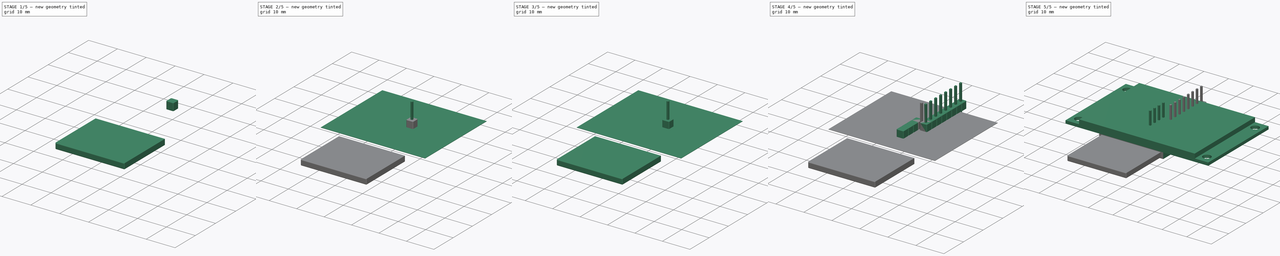
[diagram: build sequence overview — one tinted view per stage of 5, left to right]
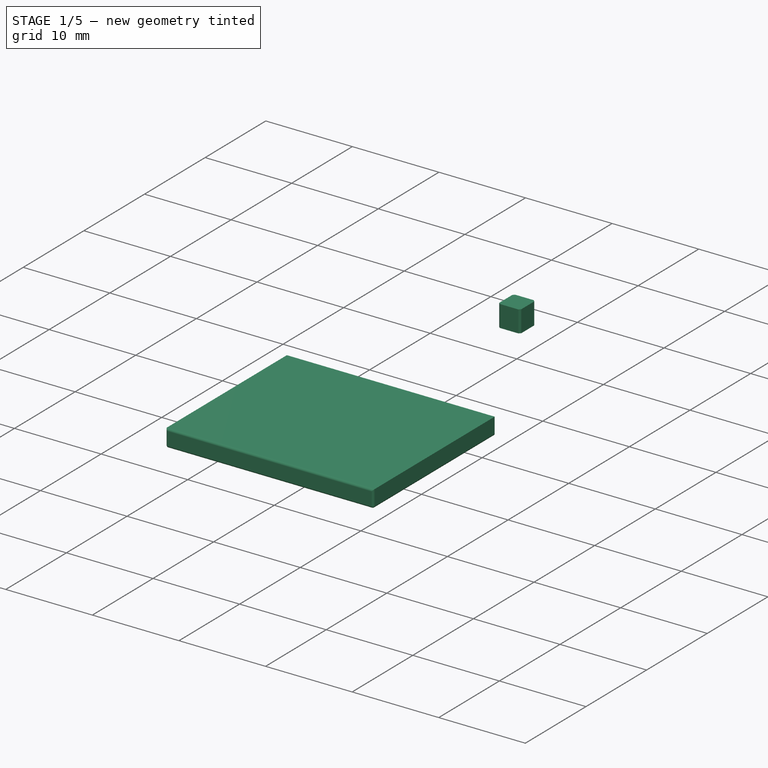
[diagram: stage 1 of 5 — iso view after this stage's code; geometry added in this stage tinted green]
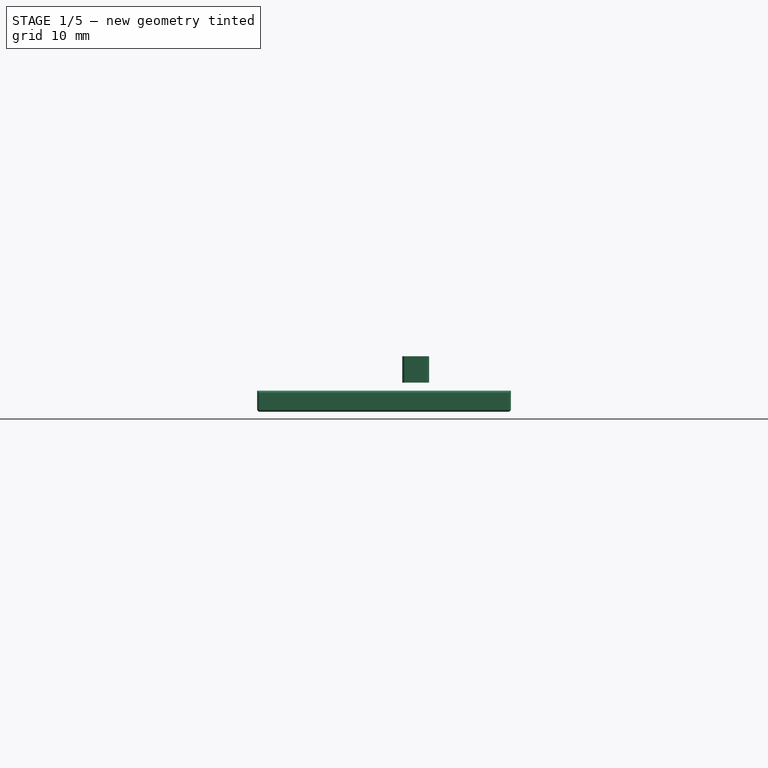
[diagram: stage 1 of 5 — front view after this stage's code; geometry added in this stage tinted green]
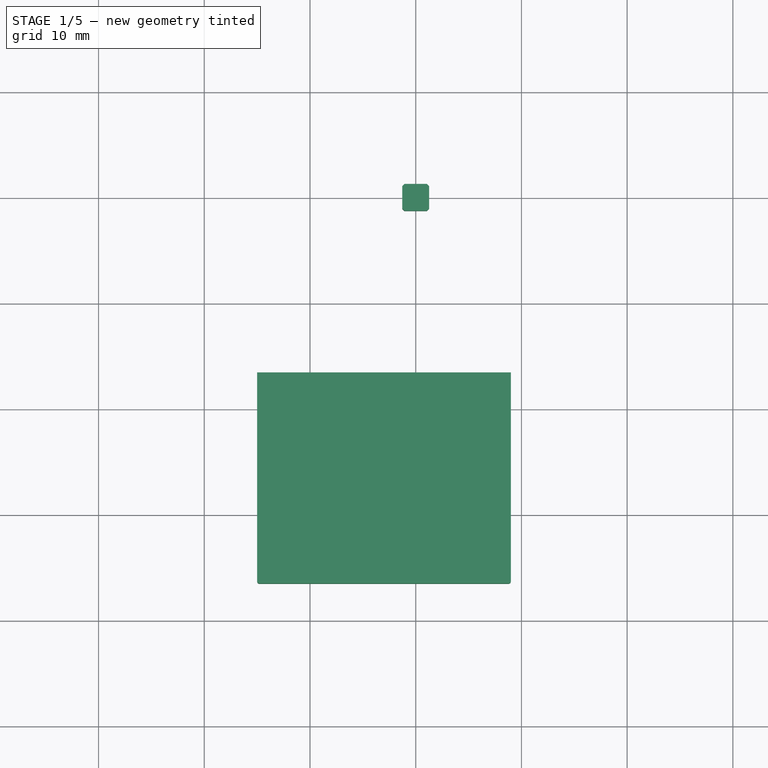
[diagram: stage 1 of 5 — top view after this stage's code; geometry added in this stage tinted green]
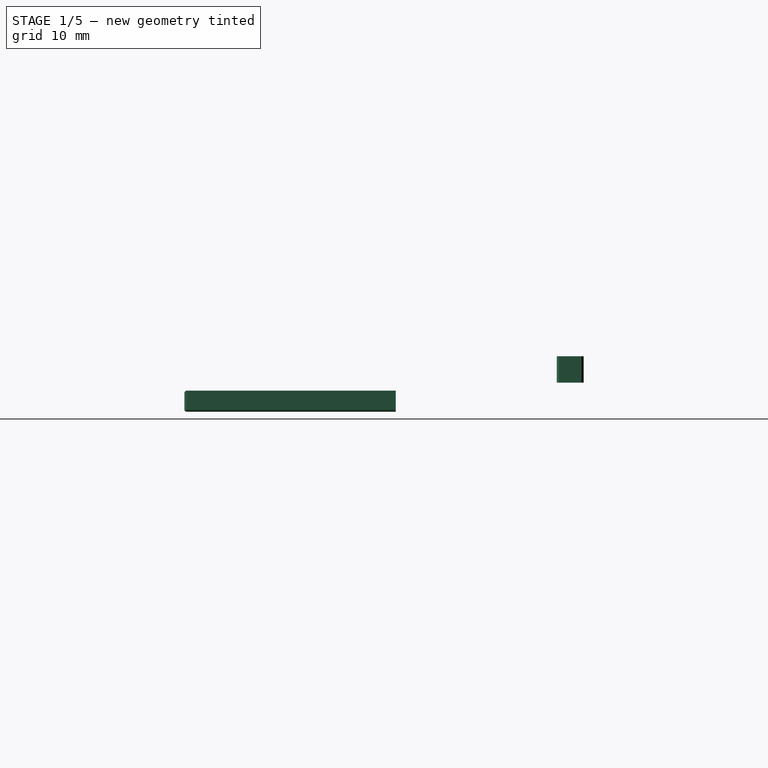
[diagram: stage 1 of 5 — right view after this stage's code; geometry added in this stage tinted green]
FCSTD DOCUMENT  (FreeCAD 0.18R4 (GitTag))
Label: 1_8_inch_tft_screen_with_sd_card
License: CreativeCommons Attribution-NonCommercial
LicenseURL: http://creativecommons.org/licenses/by-nc/4.0/
objects: Sketcher::SketchObject×9, PartDesign::Pad×9, PartDesign::Body×9, PartDesign::Chamfer×6, Part::FeaturePython×4, App::Part×3, PartDesign::ShapeBinder×2, PartDesign::Fillet×1
note: 49 computed .brp shape members not serialized (recipe doc carries the construction recipe); baked Part::Feature solids carry a one-line shape summary decoded from their .brp

FEATURE [PartDesign::Pad] Pad063
  Length = 2.5
  Length2 = 100
  Profile = -> Sketch208
  Type = 0
FEATURE [PartDesign::Chamfer] Chamfer014
  Base = -> Pad063 [Edge2,Edge1,Edge5,Edge8]
  BaseFeature = -> Pad063
  Size = 0.2
FEATURE [App::Part] Part010  label="Pin Header"
  Group = -> [Body035,Body034,Array,Array001]
  Origin = -> Origin051
  Placement = pos=(25,8.9,-1.1e-15) rot=(1,0,0;3.14159rad)
FEATURE [PartDesign::ShapeBinder] CopyPad066
  TraceSupport = false
FEATURE [Sketcher::SketchObject] Sketch
  MapMode = 5
  Placement = pos=(0,-16.5,0) rot=(1,0,0;1.5708rad)
  Support = -> [CopyPad066]
  sketch-geometry (4):
    g0: LineSegment StartX=-15 StartY=-2.75 StartZ=0 EndX=9 EndY=-2.75 EndZ=0
    g1: LineSegment StartX=9 StartY=-2.75 StartZ=0 EndX=9 EndY=-0.75 EndZ=0
    g2: LineSegment StartX=9 StartY=-0.75 StartZ=0 EndX=-15 EndY=-0.75 EndZ=0
    g3: LineSegment StartX=-15 StartY=-0.75 StartZ=0 EndX=-15 EndY=-2.75 EndZ=0
  constraints (12):
    c: Coincident(g0,g1)
    c: Coincident(g1,g2)
    c: Coincident(g2,g3)
    c: Coincident(g3,g0)
    c: Horizontal(g0)
    c: Horizontal(g2)
    c: Vertical(g1)
    c: Vertical(g3)
    c: DistanceX(g2,g2) = 24
    c: DistanceY(g3,g3) = 2
    c: DistanceX(g-1,g1) = 9
    c: DistanceY(g1,g-1) = 0.75
FEATURE [PartDesign::Pad] Pad
  Length = 20
  Length2 = 100
  Profile = -> Sketch
  Type = 0
FEATURE [PartDesign::Fillet] Fillet
  Base = -> Pad [Face6,Edge1,Edge2]
  BaseFeature = -> Pad
  Radius = 0.24
FEATURE [PartDesign::Body] Body  label="SD-CARD"
  Group = -> [CopyPad066,Sketch,Pad,Fillet]
  Origin = -> Origin
  Tip = -> Fillet
FEATURE [App::Part] Part  label="1,8" TFT"
  Group = -> [Body001,Body002,Body003,Part010,Part011,Body038,Body]
  Origin = -> Origin001
  Placement = pos=(41.5,40,5.5) rot=(0,0,1;0rad)
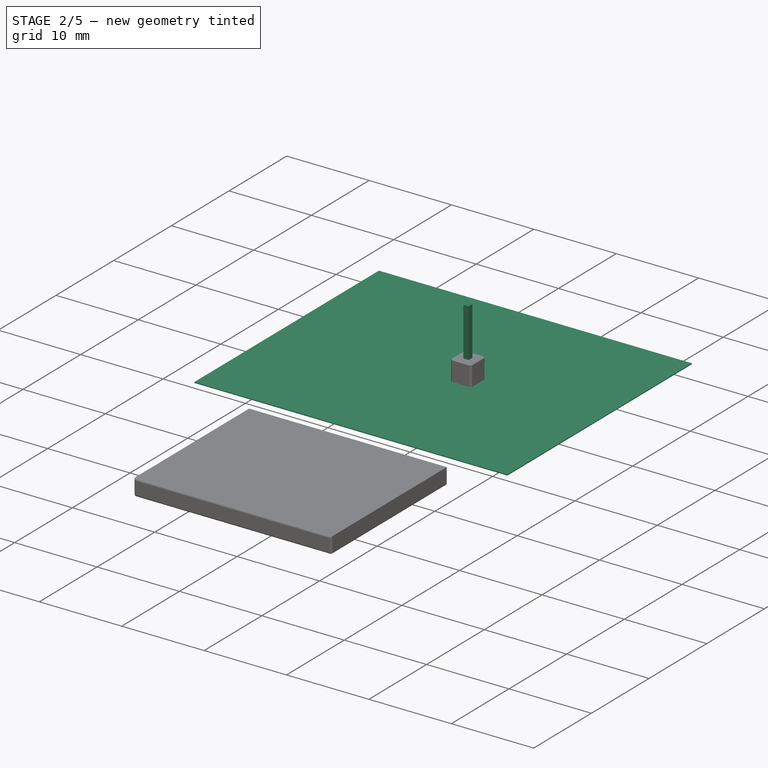
[diagram: stage 2 of 5 — iso view after this stage's code; geometry added in this stage tinted green]
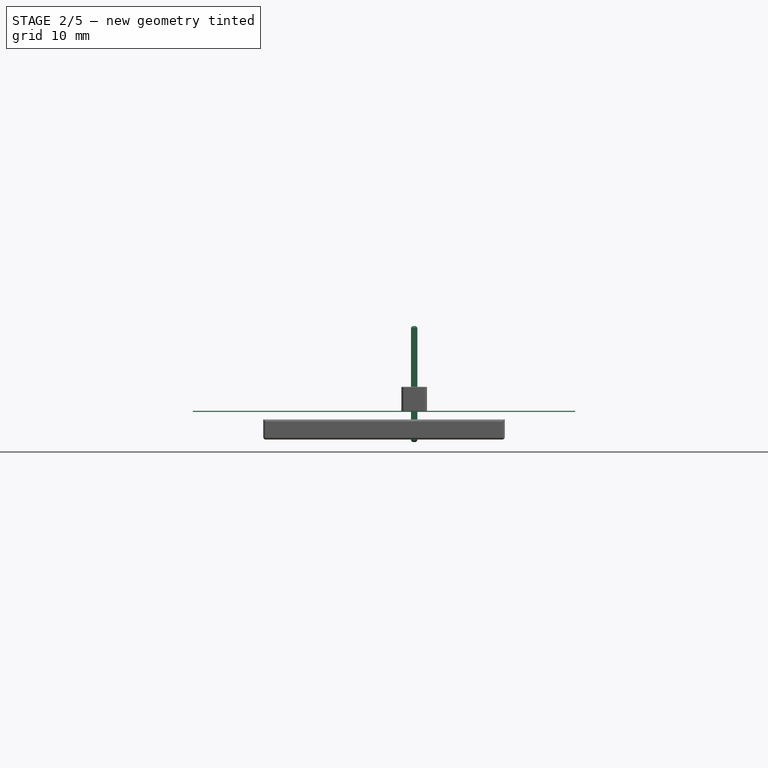
[diagram: stage 2 of 5 — front view after this stage's code; geometry added in this stage tinted green]
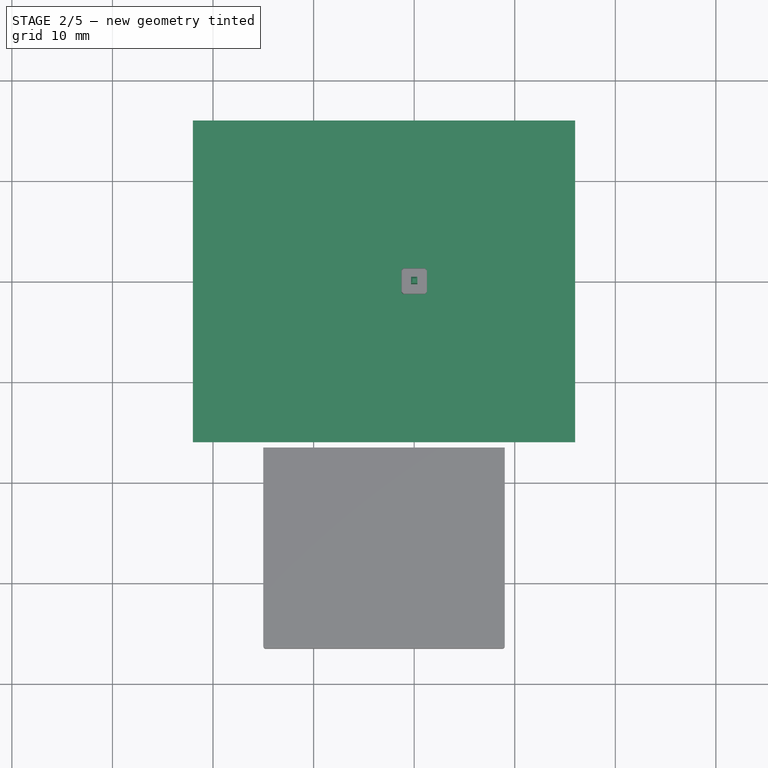
[diagram: stage 2 of 5 — top view after this stage's code; geometry added in this stage tinted green]
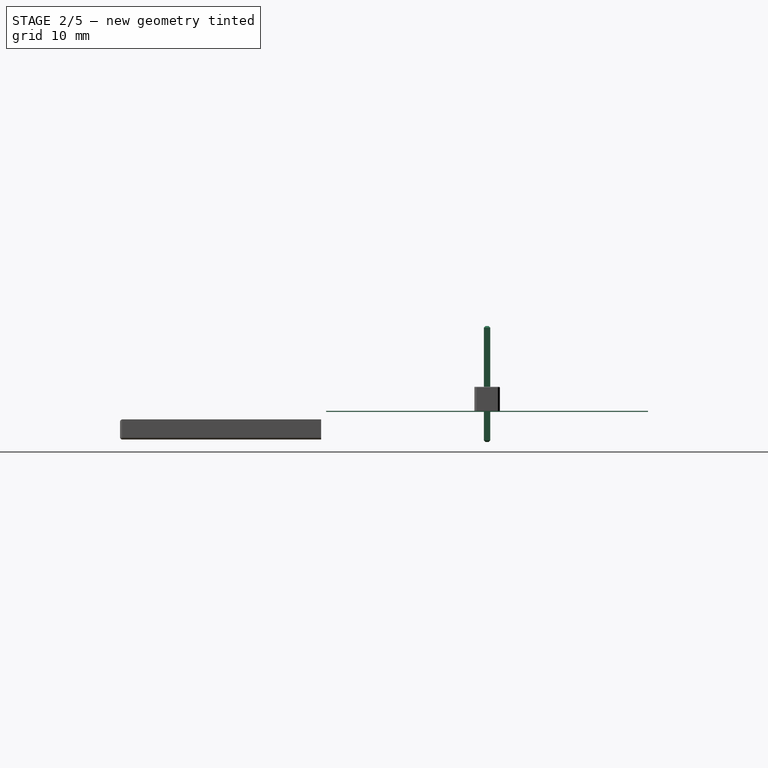
[diagram: stage 2 of 5 — right view after this stage's code; geometry added in this stage tinted green]
FEATURE [Sketcher::SketchObject] Sketch016
  MapMode = 5
  Support = -> [XY_Plane002]
  sketch-geometry (4):
    g0: LineSegment StartX=-23.5 StartY=17.5 StartZ=0 EndX=23.5 EndY=17.5 EndZ=0
    g1: LineSegment StartX=23.5 StartY=17.5 StartZ=0 EndX=23.5 EndY=-17.5 EndZ=0
    g2: LineSegment StartX=23.5 StartY=-17.5 StartZ=0 EndX=-23.5 EndY=-17.5 EndZ=0
    g3: LineSegment StartX=-23.5 StartY=-17.5 StartZ=0 EndX=-23.5 EndY=17.5 EndZ=0
  constraints (10):
    c: Coincident(g0,g1)
    c: Coincident(g1,g2)
    c: Coincident(g2,g3)
    c: Coincident(g3,g0)
    c: Horizontal(g2)
    c: Vertical(g1)
    c: Symmetric(g0,g2,g-1)
    c: DistanceX(g0,g0) = 47
    c: DistanceY(g3,g3) = 35
    c: Symmetric(g0,g0,g-2)
FEATURE [Sketcher::SketchObject] Sketch208
  MapMode = 5
  Support = -> [XY_Plane052]
  sketch-geometry (4):
    g0: LineSegment StartX=-1.27 StartY=-1.27 StartZ=0 EndX=1.27 EndY=-1.27 EndZ=0
    g1: LineSegment StartX=1.27 StartY=-1.27 StartZ=0 EndX=1.27 EndY=1.27 EndZ=0
    g2: LineSegment StartX=1.27 StartY=1.27 StartZ=0 EndX=-1.27 EndY=1.27 EndZ=0
    g3: LineSegment StartX=-1.27 StartY=1.27 StartZ=0 EndX=-1.27 EndY=-1.27 EndZ=0
  constraints (10):
    c: Coincident(g0,g1)
    c: Coincident(g1,g2)
    c: Coincident(g2,g3)
    c: Coincident(g3,g0)
    c: Horizontal(g0)
    c: Vertical(g3)
    c: Symmetric(g1,g2,g-2)
    c: Symmetric(g0,g1,g-1)
    c: Equal(g3,g2)
    c: DistanceX(g2,g2) = 2.54
FEATURE [Sketcher::SketchObject] Sketch207
  MapMode = 5
  Placement = pos=(0,0,0) rot=(1,0,0;1.5708rad)
  Support = -> [XZ_Plane050]
  sketch-geometry (4):
    g0: LineSegment StartX=-0.32 StartY=-3 StartZ=0 EndX=0.32 EndY=-3 EndZ=0
    g1: LineSegment StartX=0.32 StartY=-3 StartZ=0 EndX=0.32 EndY=8.54 EndZ=0
    g2: LineSegment StartX=0.32 StartY=8.54 StartZ=0 EndX=-0.32 EndY=8.54 EndZ=0
    g3: LineSegment StartX=-0.32 StartY=8.54 StartZ=0 EndX=-0.32 EndY=-3 EndZ=0
  constraints (11):
    c: Coincident(g0,g1)
    c: Coincident(g1,g2)
    c: Coincident(g2,g3)
    c: Coincident(g3,g0)
    c: Horizontal(g0)
    c: Vertical(g1)
    c: Vertical(g3)
    c: DistanceY(g-1,g1) = 8.54
    c: DistanceY(g0,g-1) = 3
    c: Symmetric(g2,g1,g-2)
    c: DistanceX(g2,g2) = 0.64
FEATURE [Sketcher::SketchObject] Sketch017
  MapMode = 5
  Support = -> [XY_Plane003]
  sketch-geometry (4):
    g0: LineSegment StartX=-22 StartY=-16 StartZ=0 EndX=16 EndY=-16 EndZ=0
    g1: LineSegment StartX=16 StartY=-16 StartZ=0 EndX=16 EndY=16 EndZ=0
    g2: LineSegment StartX=16 StartY=16 StartZ=0 EndX=-22 EndY=16 EndZ=0
    g3: LineSegment StartX=-22 StartY=16 StartZ=0 EndX=-22 EndY=-16 EndZ=0
  constraints (11):
    c: Coincident(g0,g1)
    c: Coincident(g1,g2)
    c: Coincident(g2,g3)
    c: Coincident(g3,g0)
    c: Horizontal(g0)
    c: Horizontal(g2)
    c: Vertical(g3)
    c: DistanceX(g2,g2) = 38
    c: DistanceY(g1,g1) = 32
    c: Symmetric(g1,g0,g-1)
    c: DistanceX(g0,g-1) = 22
FEATURE [PartDesign::Pad] Pad002
  Length = 0.1
  Length2 = 100
  Profile = -> Sketch017
  Type = 0
FEATURE [PartDesign::Pad] Pad062
  Length = 0.32
  Length2 = 0.32
  Placement = pos=(0,0,0) rot=(1,0,0;1.5708rad)
  Profile = -> Sketch207
  Type = 4
FEATURE [PartDesign::Chamfer] Chamfer012
  Base = -> Pad062 [Face3,Face1]
  BaseFeature = -> Pad062
  Placement = pos=(0,0,0) rot=(1,0,0;1.5708rad)
  Size = 0.16
FEATURE [PartDesign::Chamfer] Chamfer013
  Base = -> Chamfer014 [Face5,Face2]
  BaseFeature = -> Chamfer014
  Size = 0.05
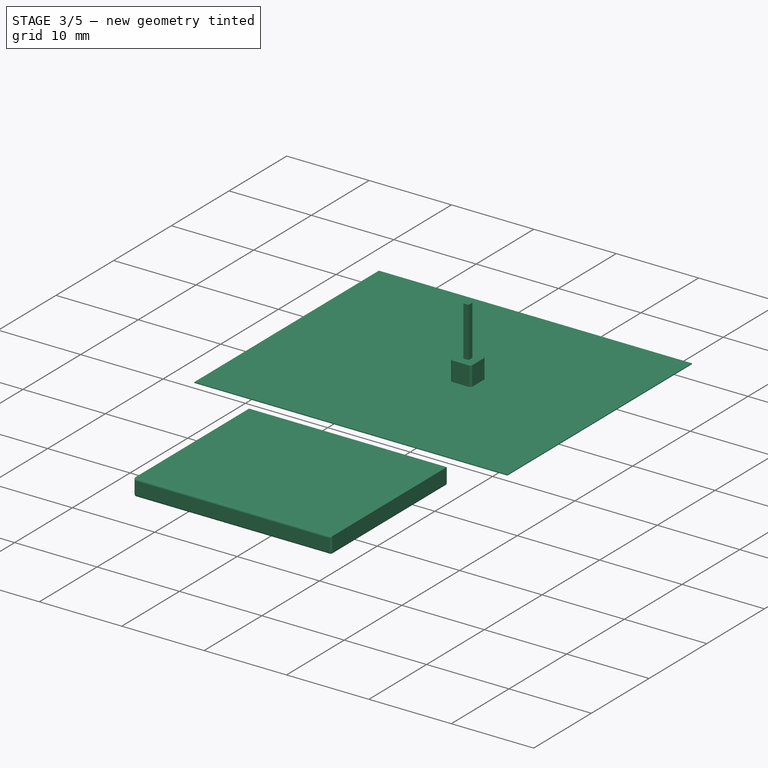
[diagram: stage 3 of 5 — iso view after this stage's code; geometry added in this stage tinted green]
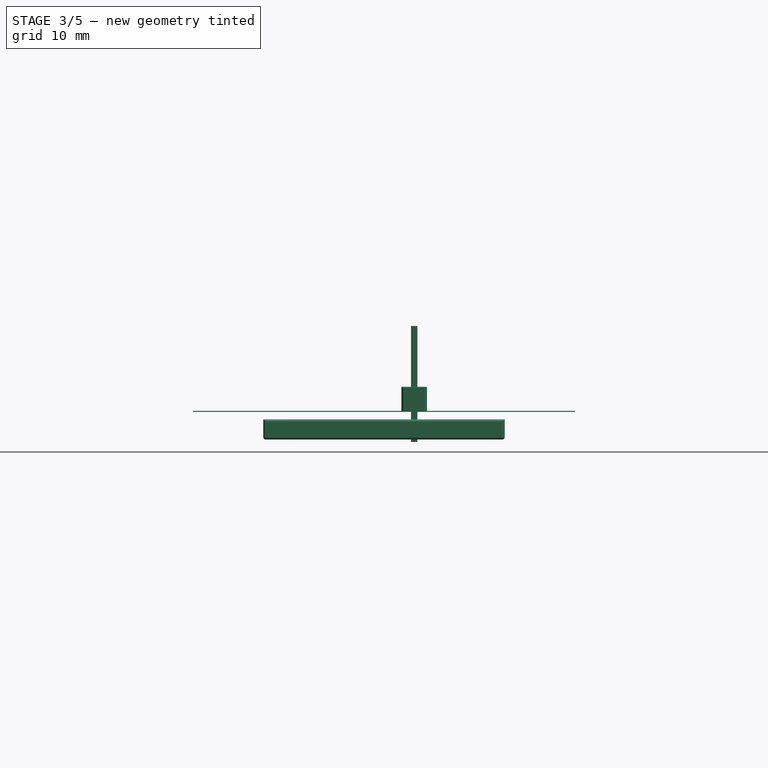
[diagram: stage 3 of 5 — front view after this stage's code; geometry added in this stage tinted green]
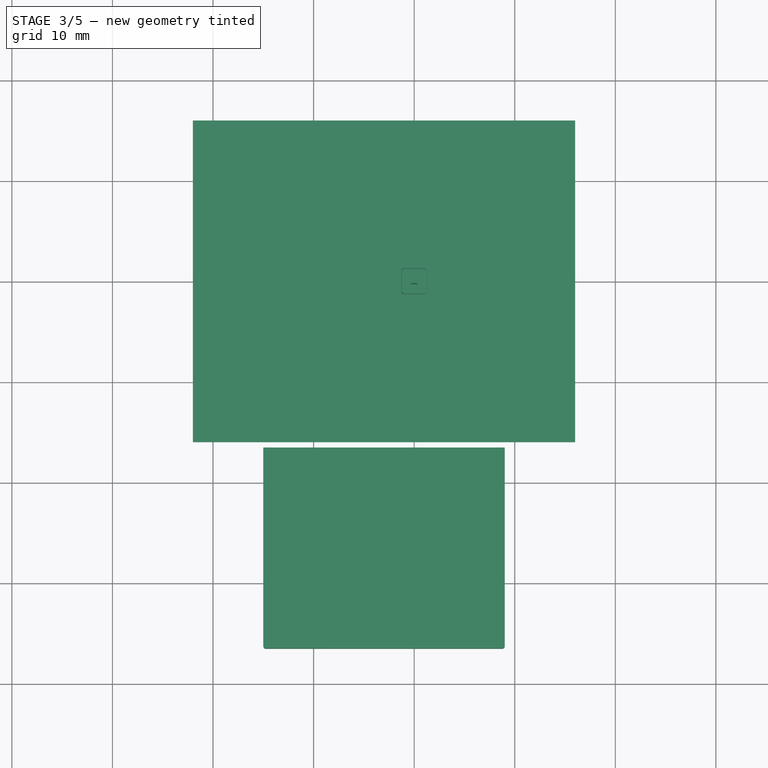
[diagram: stage 3 of 5 — top view after this stage's code; geometry added in this stage tinted green]
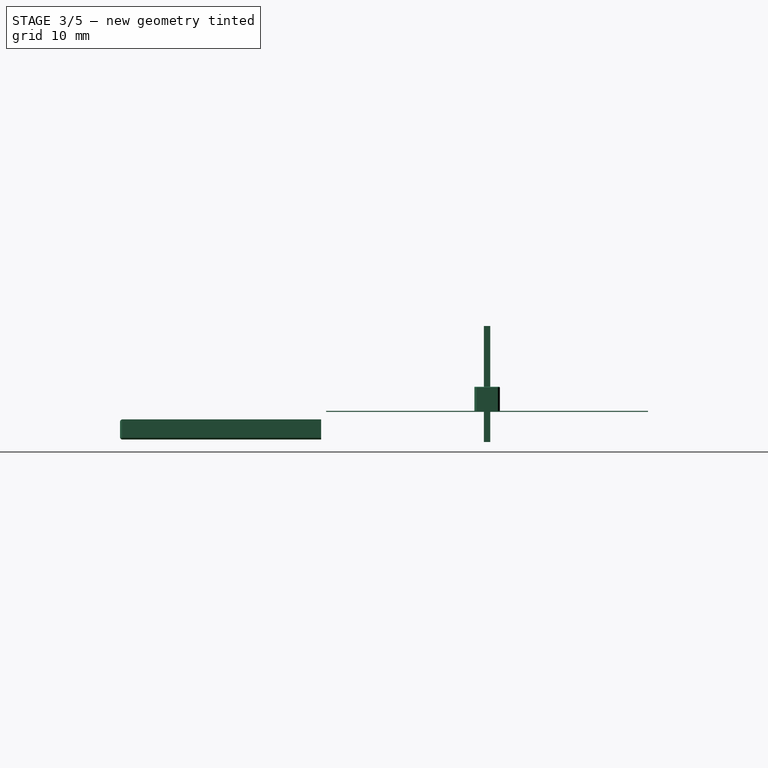
[diagram: stage 3 of 5 — right view after this stage's code; geometry added in this stage tinted green]
FEATURE [Sketcher::SketchObject] Sketch211
  MapMode = 5
  Support = -> [XY_Plane056]
  sketch-geometry (4):
    g0: LineSegment StartX=-1.27 StartY=-1.27 StartZ=0 EndX=1.27 EndY=-1.27 EndZ=0
    g1: LineSegment StartX=1.27 StartY=-1.27 StartZ=0 EndX=1.27 EndY=1.27 EndZ=0
    g2: LineSegment StartX=1.27 StartY=1.27 StartZ=0 EndX=-1.27 EndY=1.27 EndZ=0
    g3: LineSegment StartX=-1.27 StartY=1.27 StartZ=0 EndX=-1.27 EndY=-1.27 EndZ=0
  constraints (10):
    c: Coincident(g0,g1)
    c: Coincident(g1,g2)
    c: Coincident(g2,g3)
    c: Coincident(g3,g0)
    c: Horizontal(g0)
    c: Vertical(g3)
    c: Symmetric(g1,g2,g-2)
    c: Symmetric(g0,g1,g-1)
    c: Equal(g3,g2)
    c: DistanceX(g2,g2) = 2.54
FEATURE [PartDesign::Pad] Pad065
  Length = 2.5
  Length2 = 100
  Profile = -> Sketch211
  Type = 0
FEATURE [PartDesign::Chamfer] Chamfer016
  Base = -> Pad065 [Edge2,Edge1,Edge5,Edge8]
  BaseFeature = -> Pad065
  Size = 0.2
FEATURE [PartDesign::Chamfer] Chamfer015
  Base = -> Chamfer016 [Face5,Face2]
  BaseFeature = -> Chamfer016
  Size = 0.05
FEATURE [PartDesign::Body] Body001  label="1,8" TFT PCB"
  Group = -> [Sketch209,Pad007]
  Origin = -> Origin002
  Tip = -> Pad007
FEATURE [Sketcher::SketchObject] Sketch210
  MapMode = 5
  Placement = pos=(0,0,0) rot=(1,0,0;1.5708rad)
  Support = -> [XZ_Plane054]
  sketch-geometry (4):
    g0: LineSegment StartX=-0.32 StartY=-3 StartZ=0 EndX=0.32 EndY=-3 EndZ=0
    g1: LineSegment StartX=0.32 StartY=-3 StartZ=0 EndX=0.32 EndY=8.54 EndZ=0
    g2: LineSegment StartX=0.32 StartY=8.54 StartZ=0 EndX=-0.32 EndY=8.54 EndZ=0
    g3: LineSegment StartX=-0.32 StartY=8.54 StartZ=0 EndX=-0.32 EndY=-3 EndZ=0
  constraints (11):
    c: Coincident(g0,g1)
    c: Coincident(g1,g2)
    c: Coincident(g2,g3)
    c: Coincident(g3,g0)
    c: Horizontal(g0)
    c: Vertical(g1)
    c: Vertical(g3)
    c: DistanceY(g-1,g1) = 8.54
    c: DistanceY(g0,g-1) = 3
    c: Symmetric(g2,g1,g-2)
    c: DistanceX(g2,g2) = 0.64
FEATURE [PartDesign::Pad] Pad064
  Length = 0.32
  Length2 = 0.32
  Placement = pos=(0,0,0) rot=(1,0,0;1.5708rad)
  Profile = -> Sketch210
  Type = 4
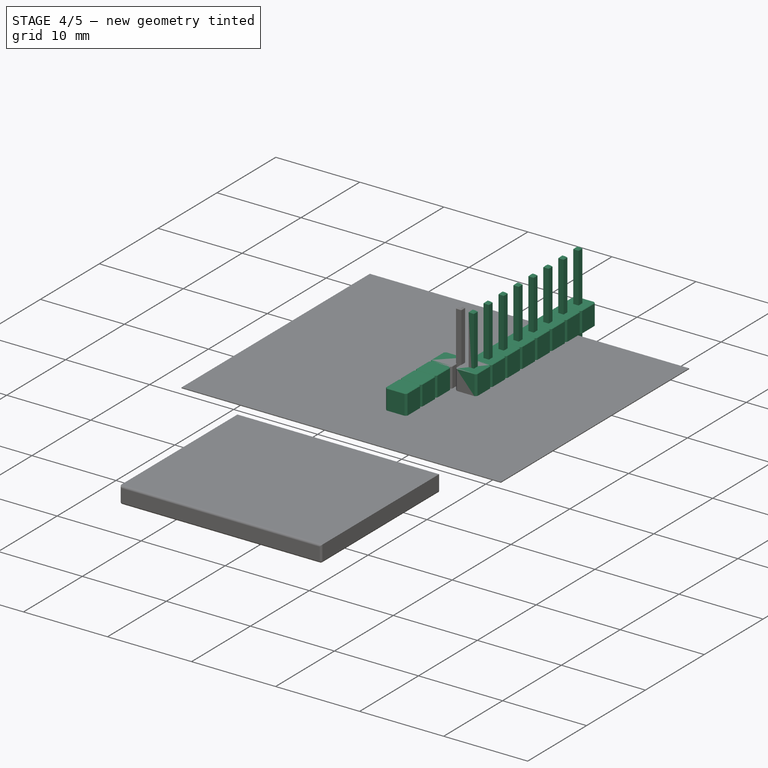
[diagram: stage 4 of 5 — iso view after this stage's code; geometry added in this stage tinted green]
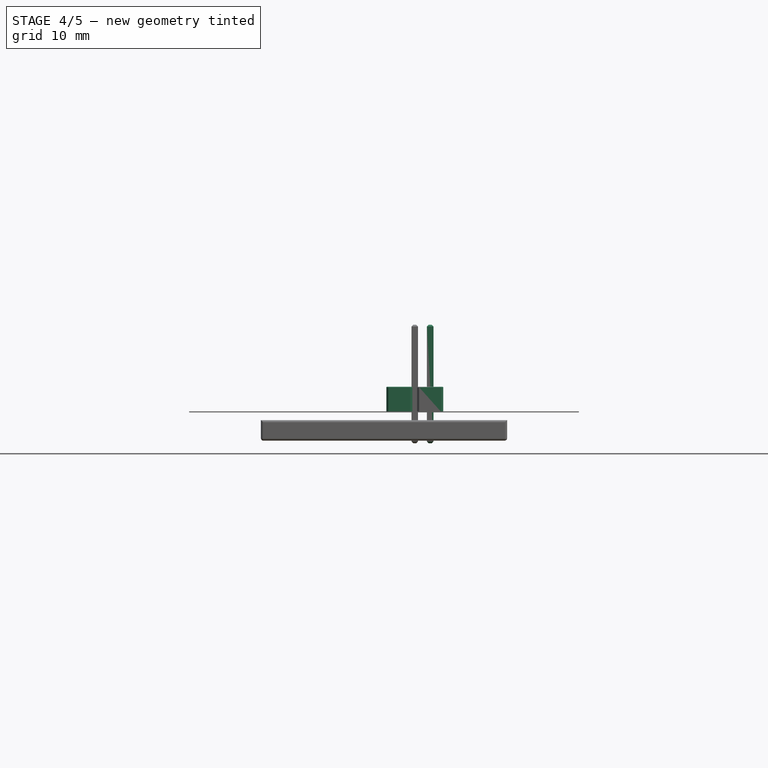
[diagram: stage 4 of 5 — front view after this stage's code; geometry added in this stage tinted green]
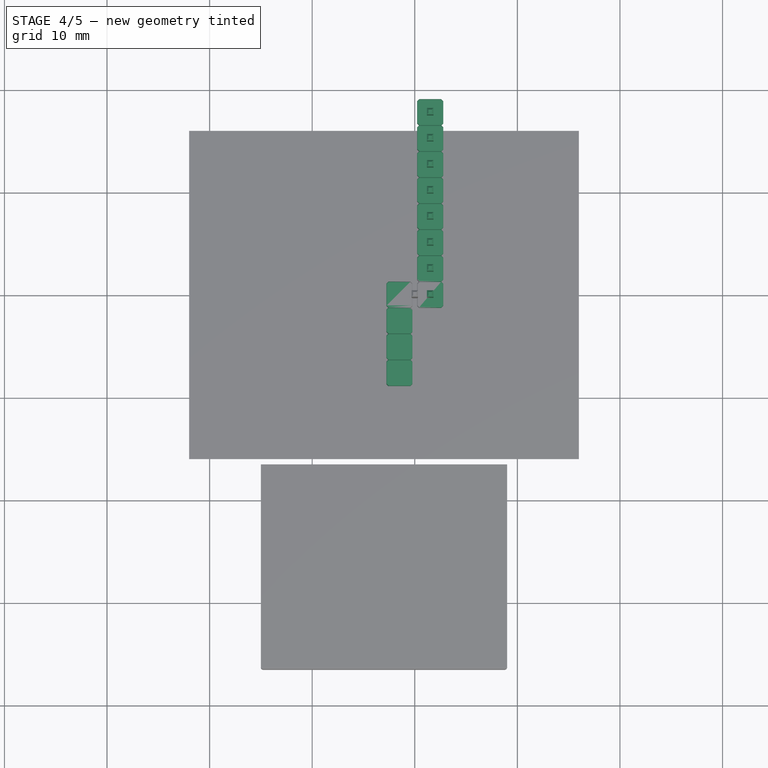
[diagram: stage 4 of 5 — top view after this stage's code; geometry added in this stage tinted green]
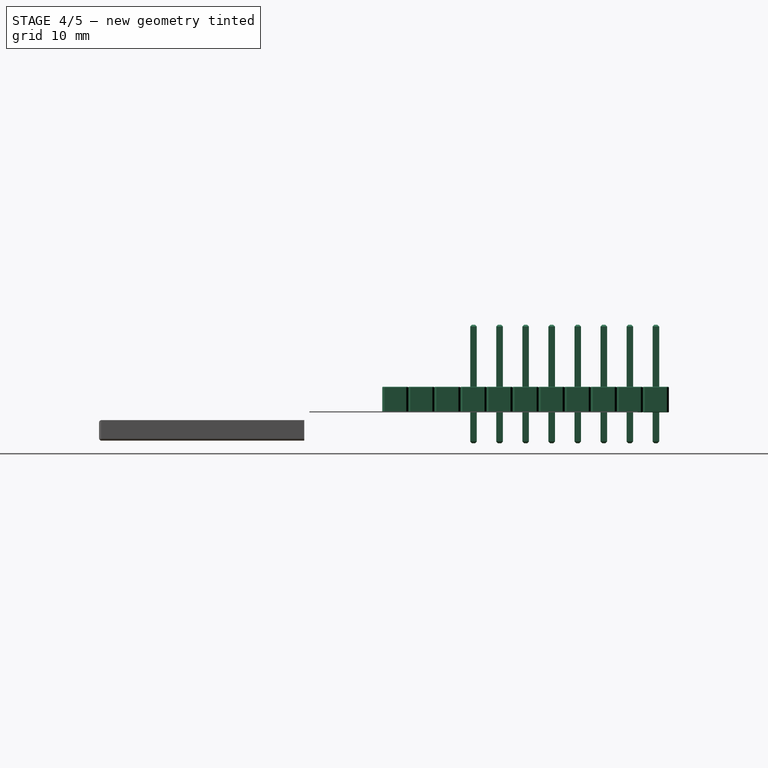
[diagram: stage 4 of 5 — right view after this stage's code; geometry added in this stage tinted green]
FEATURE [PartDesign::Chamfer] Chamfer017
  Base = -> Pad064 [Face3,Face1]
  BaseFeature = -> Pad064
  Placement = pos=(0,0,0) rot=(1,0,0;1.5708rad)
  Size = 0.16
FEATURE [PartDesign::Body] Body036  label="Pin Header Block001"
  Group = -> [Sketch211,Pad065,Chamfer016,Chamfer015]
  Origin = -> Origin055
  Placement = pos=(-1.5,0,0) rot=(0,0,1;0rad)
  Tip = -> Chamfer015
FEATURE [Part::FeaturePython] Array002  # Draft array (typed FeaturePython)
  Angle = 360
  ArrayType = 0
  Axis = (0,0,1)
  Base = -> Body036
  Center = (0,0,0)
  Fuse = false
  IntervalAxis = (0,0,0)
  IntervalX = (2.54,0,0)
  IntervalY = (0,-2.54,0)
  IntervalZ = (0,0,1)
  NumberPolar = 1
  NumberX = 1
  NumberY = 4
  NumberZ = 1
FEATURE [App::Part] Part011  label="Pin Header SD-CARD"
  Group = -> [Body036,Body037,Array002,Array003]
  Origin = -> Origin054
  Placement = pos=(-25,-3.81,0) rot=(1,0,0;3.14159rad)
FEATURE [PartDesign::Body] Body003  label="1,8" TFT Screen"
  Group = -> [Sketch017,Pad002]
  Origin = -> Origin003
  Placement = pos=(0,0,4.2) rot=(0,0,1;0rad)
  Tip = -> Pad002
FEATURE [PartDesign::Body] Body034  label="Pin Header Pin"
  Group = -> [Sketch207,Pad062,Chamfer012]
  Origin = -> Origin050
  Placement = pos=(1.5,0,0) rot=(0,0,1;0rad)
  Tip = -> Chamfer012
FEATURE [Part::FeaturePython] Array001  # Draft array (typed FeaturePython)
  Angle = 360
  ArrayType = 0
  Axis = (0,0,1)
  Base = -> Body034
  Center = (0,0,0)
  Fuse = false
  IntervalAxis = (0,0,0)
  IntervalX = (1,0,0)
  IntervalY = (0,2.54,0)
  IntervalZ = (0,0,1)
  NumberPolar = 1
  NumberX = 1
  NumberY = 8
  NumberZ = 1
FEATURE [PartDesign::Body] Body035  label="Pin Header Block"
  Group = -> [Sketch208,Pad063,Chamfer014,Chamfer013]
  Origin = -> Origin052
  Placement = pos=(1.5,0,0) rot=(0,0,1;0rad)
  Tip = -> Chamfer013
FEATURE [Part::FeaturePython] Array  # Draft array (typed FeaturePython)
  Angle = 360
  ArrayType = 0
  Axis = (0,0,1)
  Base = -> Body035
  Center = (0,0,0)
  Fuse = false
  IntervalAxis = (0,0,0)
  IntervalX = (1,0,0)
  IntervalY = (0,2.54,0)
  IntervalZ = (0,0,1)
  NumberPolar = 1
  NumberX = 1
  NumberY = 8
  NumberZ = 1
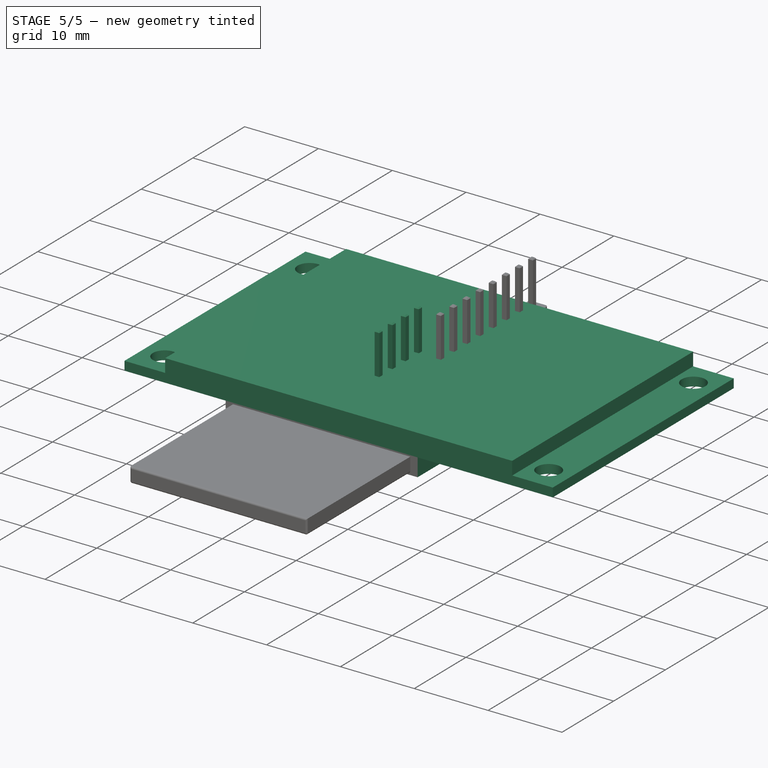
[diagram: stage 5 of 5 — iso view after this stage's code; geometry added in this stage tinted green]
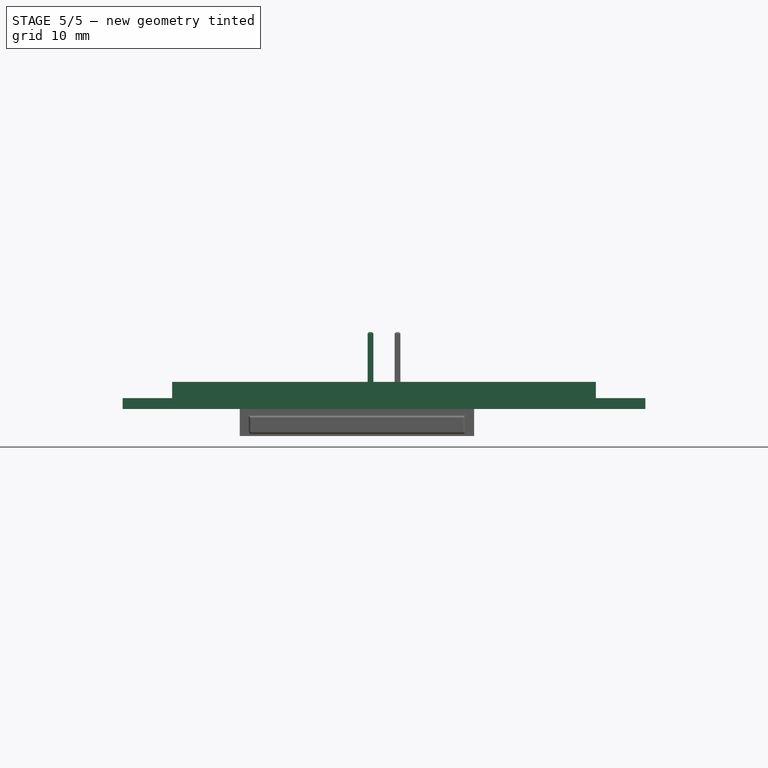
[diagram: stage 5 of 5 — front view after this stage's code; geometry added in this stage tinted green]
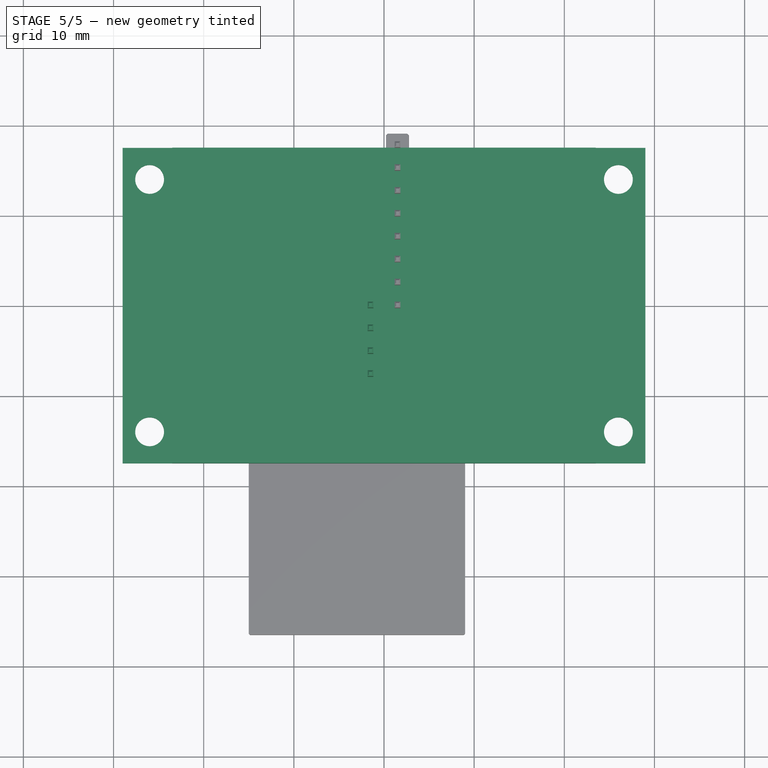
[diagram: stage 5 of 5 — top view after this stage's code; geometry added in this stage tinted green]
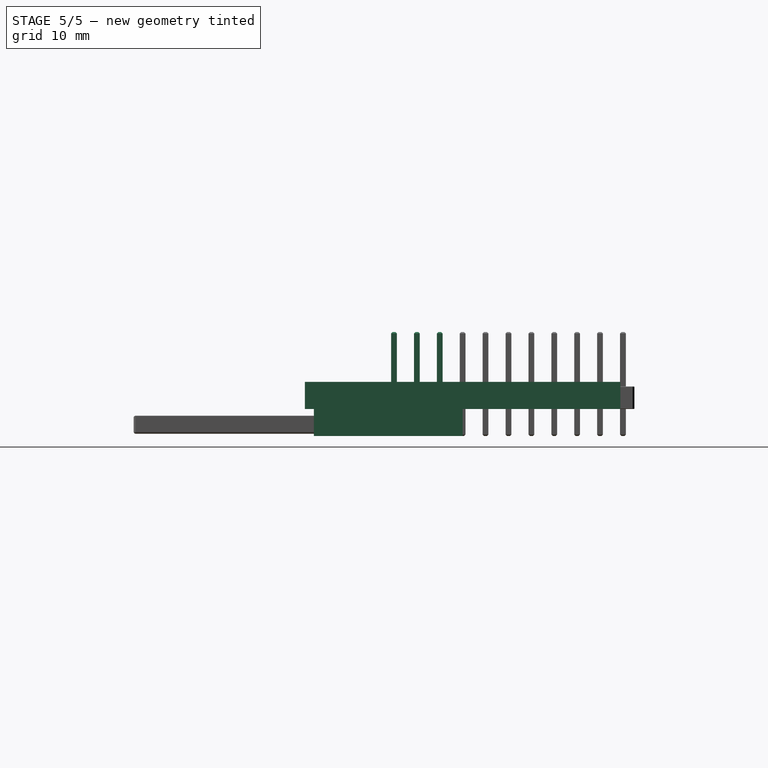
[diagram: stage 5 of 5 — right view after this stage's code; geometry added in this stage tinted green]
FEATURE [PartDesign::Pad] Pad008
  Length = 3
  Length2 = 100
  Profile = -> Sketch016
  Type = 0
FEATURE [Sketcher::SketchObject] Sketch209
  MapMode = 5
  Support = -> [XY_Plane001]
  sketch-geometry (8):
    g0: LineSegment StartX=-29 StartY=17.5 StartZ=0 EndX=29 EndY=17.5 EndZ=0
    g1: LineSegment StartX=29 StartY=17.5 StartZ=0 EndX=29 EndY=-17.5 EndZ=0
    g2: LineSegment StartX=29 StartY=-17.5 StartZ=0 EndX=-29 EndY=-17.5 EndZ=0
    g3: LineSegment StartX=-29 StartY=-17.5 StartZ=0 EndX=-29 EndY=17.5 EndZ=0
    g4: Circle CenterX=-26 CenterY=14 CenterZ=0 NormalX=0 NormalY=0 NormalZ=1 AngleXU=0 Radius=1.6
    g5: Circle CenterX=26 CenterY=14 CenterZ=0 NormalX=0 NormalY=0 NormalZ=1 AngleXU=0 Radius=1.6
    g6: Circle CenterX=-26 CenterY=-14 CenterZ=0 NormalX=0 NormalY=0 NormalZ=1 AngleXU=0 Radius=1.6
    g7: Circle CenterX=26 CenterY=-14 CenterZ=0 NormalX=0 NormalY=0 NormalZ=1 AngleXU=0 Radius=1.6
  constraints (19):
    c: Coincident(g0,g1)
    c: Coincident(g1,g2)
    c: Coincident(g2,g3)
    c: Coincident(g3,g0)
    c: Horizontal(g2)
    c: Vertical(g3)
    c: Symmetric(g0,g0,g-2)
    c: Symmetric(g0,g1,g-1)
    c: DistanceX(g0,g0) = 58
    c: DistanceY(g1,g1) = 35
    c: Symmetric(g4,g5,g-2)
    c: Symmetric(g7,g6,g-2)
    c: Symmetric(g7,g5,g-1)
    c: Equal(g7,g5)
    c: Equal(g5,g4)
    c: Equal(g4,g6)
    c: Radius(g4) = 1.6
    c: DistanceY(g7,g5) = 28
    c: DistanceX(g6,g7) = 52
FEATURE [PartDesign::Pad] Pad007
  Length = 1.2
  Length2 = 100
  Profile = -> Sketch209
  Type = 0
FEATURE [PartDesign::Body] Body002  label="1,8" TFT Screen Frame"
  Group = -> [Sketch016,Pad008]
  Origin = -> Origin053
  Placement = pos=(0,0,1.2) rot=(0,0,1;0rad)
  Tip = -> Pad008
FEATURE [PartDesign::ShapeBinder] CopyChamfer
  TraceSupport = false
FEATURE [Sketcher::SketchObject] Sketch212
  MapMode = 5
  Placement = pos=(0,0,0) rot=(1,0,0;3.14159rad)
  Support = -> [CopyChamfer]
  sketch-geometry (6):
    g0: LineSegment StartX=-16 StartY=16.5 StartZ=0 EndX=-16 EndY=7.5 EndZ=0
    g1: LineSegment StartX=-16 StartY=7.5 StartZ=0 EndX=-13.5 EndY=5 EndZ=0
    g2: LineSegment StartX=-13.5 StartY=5 StartZ=0 EndX=-13.5 EndY=0 EndZ=0
    g3: LineSegment StartX=-13.5 StartY=0 StartZ=0 EndX=10 EndY=0 EndZ=0
    g4: LineSegment StartX=10 StartY=0 StartZ=0 EndX=10 EndY=16.5 EndZ=0
    g5: LineSegment StartX=10 StartY=16.5 StartZ=0 EndX=-16 EndY=16.5 EndZ=0
  constraints (18):
    c: Vertical(g0)
    c: Coincident(g0,g1)
    c: Coincident(g1,g2)
    c: Vertical(g2)
    c: Coincident(g2,g3)
    c: Horizontal(g3)
    c: Coincident(g3,g4)
    c: Vertical(g4)
    c: Coincident(g4,g5)
    c: Coincident(g5,g0)
    c: Horizontal(g5)
    c: DistanceY(g2,g2) = 5
    c: DistanceY(g4,g4) = 16.5
    c: DistanceX(g0,g-1) = 16
    c: DistanceY(g0,g0) = 9
    c: DistanceX(g5,g5) = 26
    c: Horizontal(g3,g-1)
    c: DistanceX(g0,g1) = 2.5
FEATURE [PartDesign::Pad] Pad066
  Length = 3
  Length2 = 100
  Profile = -> Sketch212
  Type = 0
FEATURE [PartDesign::Body] Body038  label="SD-CARD-Reader"
  Group = -> [CopyChamfer,Sketch212,Pad066]
  Origin = -> Origin057
  Tip = -> Pad066
FEATURE [PartDesign::Body] Body037  label="Pin Header Pin001"
  Group = -> [Sketch210,Pad064,Chamfer017]
  Origin = -> Origin056
  Placement = pos=(-1.5,0,0) rot=(0,0,1;0rad)
  Tip = -> Chamfer017
FEATURE [Part::FeaturePython] Array003  # Draft array (typed FeaturePython)
  Angle = 360
  ArrayType = 0
  Axis = (0,0,1)
  Base = -> Body037
  Center = (0,0,0)
  Fuse = false
  IntervalAxis = (0,0,0)
  IntervalX = (2.54,0,0)
  IntervalY = (0,-2.54,0)
  IntervalZ = (0,0,1)
  NumberPolar = 1
  NumberX = 1
  NumberY = 4
  NumberZ = 1
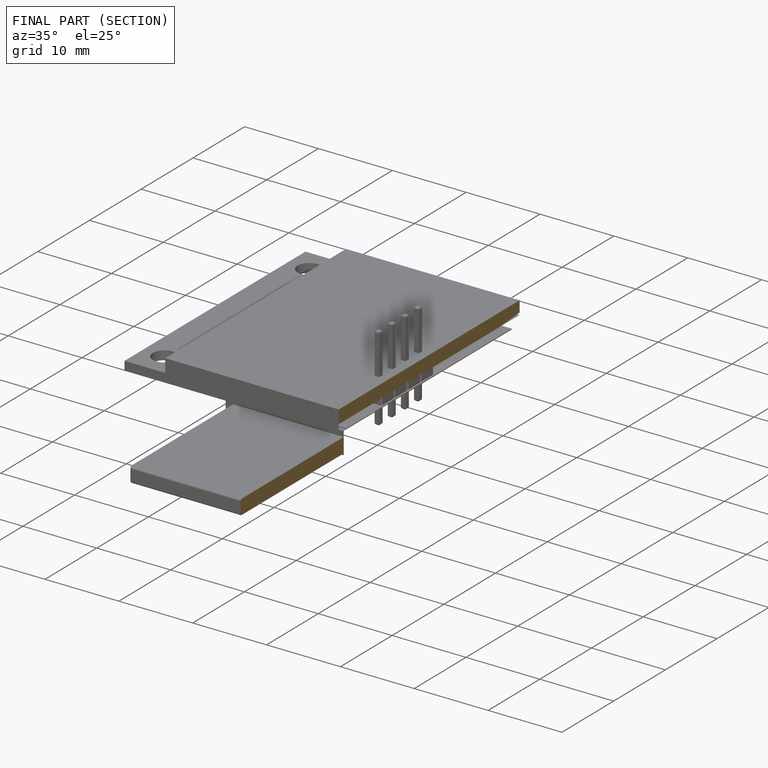
[diagram: finished part — half-section view (interior)]
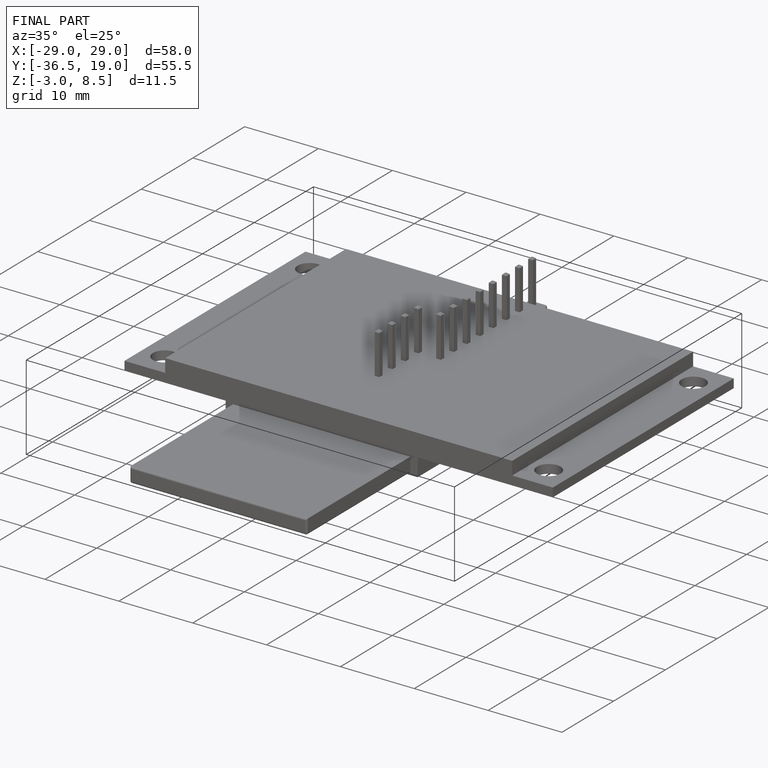
[diagram: finished part — iso view with bounding-box wireframe]
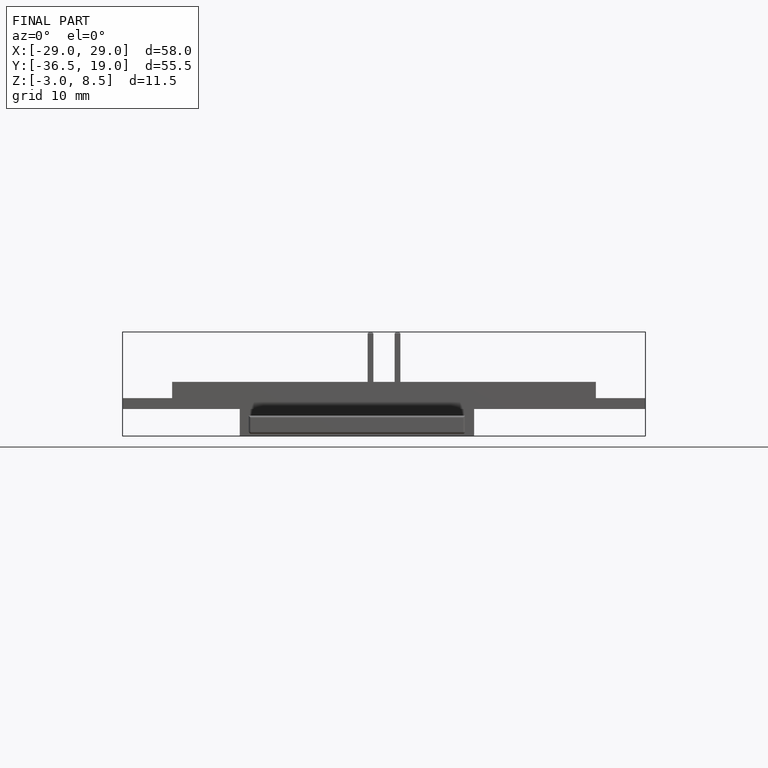
[diagram: finished part — front view with bounding-box wireframe]
